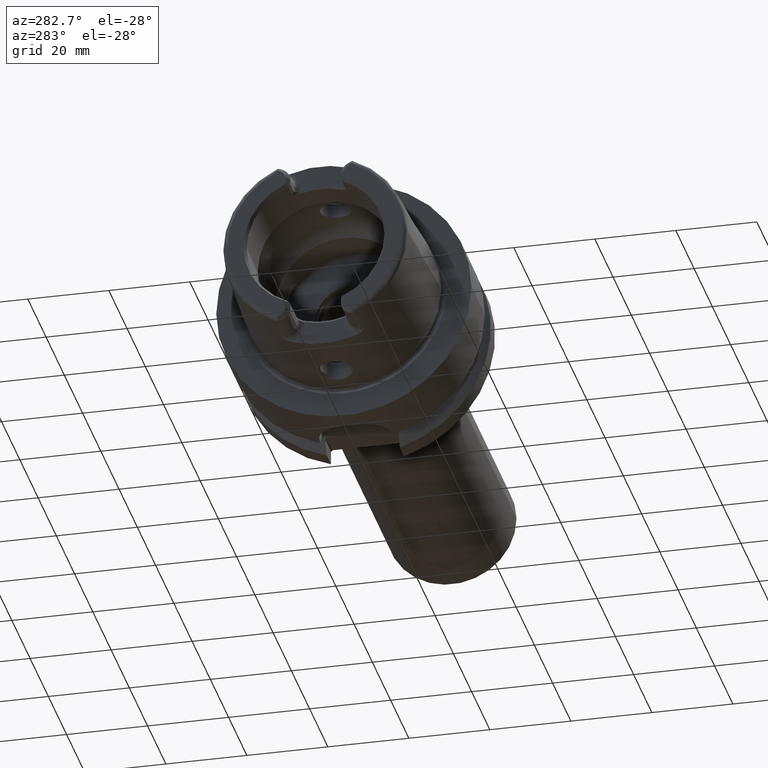
[diagram: clean part render]
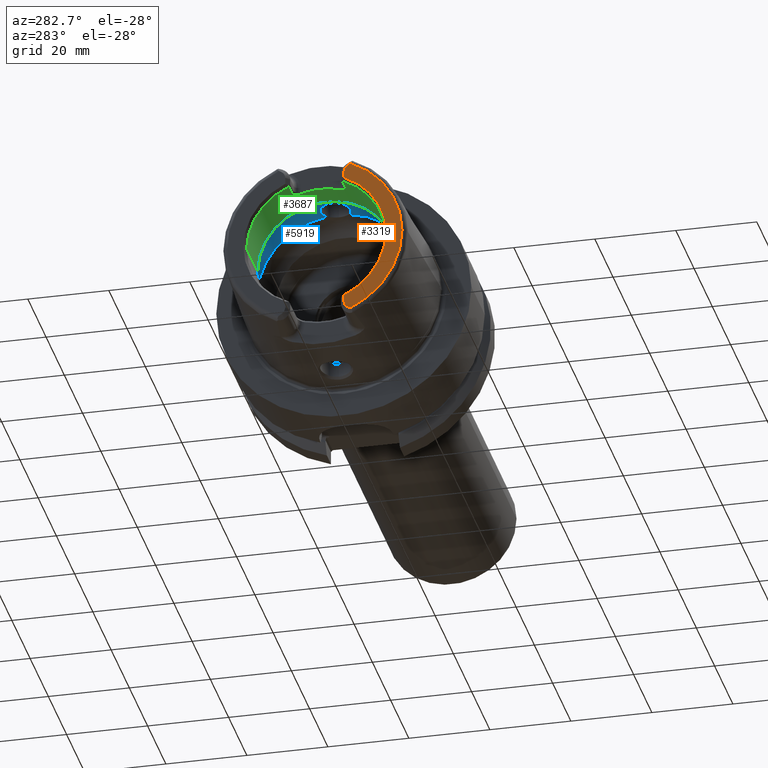
[diagram: same view with three faces highlighted in distinct colors, each labeled with its STEP entity id]
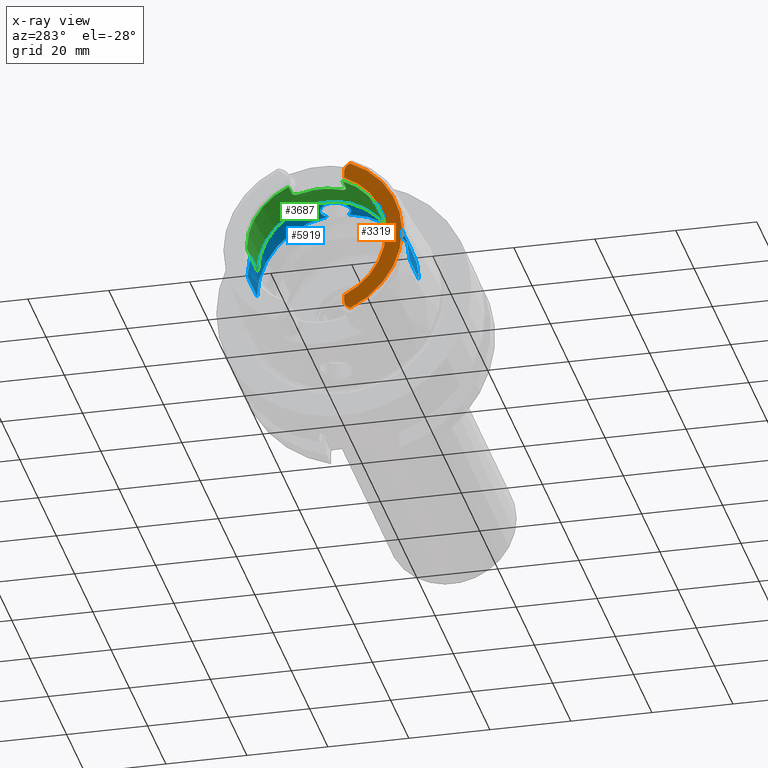
[diagram: x-ray of the same camera — body ghosted, the three highlighted faces saturated]
A machine part, auxiliary view with three faces highlighted in distinct colors.
The next image is the same camera in x-ray (body ghosted, the three faces saturated) — at least one of them is partly hidden behind the body in this view.
Their STEP definitions:

[orange] entity #3319 — the highlighted planar face has unit normal (1, 0, 0).
#231=CARTESIAN_POINT('',(-3.2E1,0.E0,0.E0));
#232=DIRECTION('',(-1.E0,0.E0,0.E0));
#233=DIRECTION('',(0.E0,-4.056746540583E-1,-9.140175463604E-1));
#234=AXIS2_PLACEMENT_3D('',#231,#232,#233);
#315=DIRECTION('',(0.E0,0.E0,-1.E0));
#316=VECTOR('',#315,1.666552168805E0);
#317=CARTESIAN_POINT('',(-3.2E1,-7.27E0,-1.600344783120E1));
#318=LINE('',#317,#316);
#319=DIRECTION('',(0.E0,0.E0,1.E0));
#320=VECTOR('',#319,1.666552168805E0);
#321=CARTESIAN_POINT('',(-3.2E1,-7.27E0,1.600344783120E1));
#322=LINE('',#321,#320);
#323=CARTESIAN_POINT('',(-3.2E1,-9.27E0,1.767E1));
#324=DIRECTION('',(1.E0,0.E0,0.E0));
#325=DIRECTION('',(0.E0,1.E0,1.065814103640E-14));
#326=AXIS2_PLACEMENT_3D('',#323,#324,#325);
#328=DIRECTION('',(0.E0,8.373245684230E-1,-5.467061067112E-1));
#329=VECTOR('',#328,6.882400885957E-1);
#330=CARTESIAN_POINT('',(-3.2E1,-8.752868121732E0,1.972091419616E1));
#331=LINE('',#330,#329);
#332=DIRECTION('',(0.E0,8.373245684230E-1,5.467061067112E-1));
#333=VECTOR('',#332,6.882400885957E-1);
#334=CARTESIAN_POINT('',(-3.2E1,-8.752868121732E0,-1.972091419616E1));
#335=LINE('',#334,#333);
#336=CARTESIAN_POINT('',(-3.2E1,-9.27E0,-1.767E1));
#337=DIRECTION('',(-1.E0,0.E0,0.E0));
#338=DIRECTION('',(0.E0,1.E0,0.E0));
#339=AXIS2_PLACEMENT_3D('',#336,#337,#338);
#410=CARTESIAN_POINT('',(-3.2E1,0.E0,0.E0));
#411=DIRECTION('',(1.E0,0.E0,0.E0));
#412=DIRECTION('',(0.E0,-4.136004510727E-1,9.104584926686E-1));
#413=AXIS2_PLACEMENT_3D('',#410,#411,#412);
#2719=CARTESIAN_POINT('',(-3.2E1,-7.27E0,1.600344783120E1));
#2720=CARTESIAN_POINT('',(-3.2E1,-7.27E0,1.767E1));
#2721=VERTEX_POINT('',#2719);
#2722=VERTEX_POINT('',#2720);
#2723=CARTESIAN_POINT('',(-3.2E1,-8.176587786578E0,1.934464913685E1));
#2724=VERTEX_POINT('',#2723);
#2725=CARTESIAN_POINT('',(-3.2E1,-8.752868121732E0,1.972091419616E1));
#2726=VERTEX_POINT('',#2725);
#2816=CARTESIAN_POINT('',(-3.2E1,-7.27E0,-1.600344783120E1));
#2817=CARTESIAN_POINT('',(-3.2E1,-7.27E0,-1.767E1));
#2818=VERTEX_POINT('',#2816);
#2819=VERTEX_POINT('',#2817);
#2820=CARTESIAN_POINT('',(-3.2E1,-8.176587786578E0,-1.934464913685E1));
#2821=VERTEX_POINT('',#2820);
#2822=CARTESIAN_POINT('',(-3.2E1,-8.752868121732E0,-1.972091419616E1));
#2823=VERTEX_POINT('',#2822);
#3297=CARTESIAN_POINT('',(-3.2E1,0.E0,0.E0));
#3298=DIRECTION('',(1.E0,0.E0,0.E0));
#3299=DIRECTION('',(0.E0,-1.E0,0.E0));
#3300=AXIS2_PLACEMENT_3D('',#3297,#3298,#3299);
#3301=PLANE('',#3300);
#3303=ORIENTED_EDGE('',*,*,#3302,.F.);
#3305=ORIENTED_EDGE('',*,*,#3304,.F.);
#3307=ORIENTED_EDGE('',*,*,#3306,.T.);
#3309=ORIENTED_EDGE('',*,*,#3308,.T.);
#3311=ORIENTED_EDGE('',*,*,#3310,.F.);
#3312=ORIENTED_EDGE('',*,*,#3244,.F.);
#3314=ORIENTED_EDGE('',*,*,#3313,.T.);
#3316=ORIENTED_EDGE('',*,*,#3315,.F.);
#3317=EDGE_LOOP('',(#3303,#3305,#3307,#3309,#3311,#3312,#3314,#3316));
#3318=FACE_OUTER_BOUND('',#3317,.F.);
#3319=ADVANCED_FACE('',(#3318),#3301,.F.);
#235=CIRCLE('',#234,2.157607835286E1);
#327=CIRCLE('',#326,2.E0);
#340=CIRCLE('',#339,2.E0);
#414=CIRCLE('',#413,1.757735026919E1);
#3244=EDGE_CURVE('',#2823,#2726,#235,.T.);
#3302=EDGE_CURVE('',#2818,#2819,#318,.T.);
#3304=EDGE_CURVE('',#2721,#2818,#414,.T.);
#3306=EDGE_CURVE('',#2721,#2722,#322,.T.);
#3308=EDGE_CURVE('',#2722,#2724,#327,.T.);
#3310=EDGE_CURVE('',#2726,#2724,#331,.T.);
#3313=EDGE_CURVE('',#2823,#2821,#335,.T.);
#3315=EDGE_CURVE('',#2819,#2821,#340,.T.);

[blue] entity #5919 — the highlighted cylindrical surface (partial cylindrical patch) has radius 20 mm, axis along (1, 0, 0).
#2238=CARTESIAN_POINT('',(-6.344997998398E0,2.648294615690E0,1.982388800484E1));
#2240=CARTESIAN_POINT('',(-6.344997998398E0,-2.648294615690E0,
1.982388800484E1));
#2255=CARTESIAN_POINT('',(-6.344997998398E0,2.648294615690E0,1.982388800484E1));
#2256=CARTESIAN_POINT('',(-6.460596585787E0,2.764185981810E0,1.980840595204E1));
#2257=CARTESIAN_POINT('',(-6.705032526468E0,2.979236620594E0,1.977762997767E1));
#2258=CARTESIAN_POINT('',(-7.115707088008E0,3.254820950558E0,1.973390915713E1));
#2259=CARTESIAN_POINT('',(-7.558788067840E0,3.473550756710E0,1.969635481023E1));
#2260=CARTESIAN_POINT('',(-8.021221245910E0,3.630990626018E0,1.966777323779E1));
#2261=CARTESIAN_POINT('',(-8.506803393416E0,3.728808889512E0,1.964936004927E1));
#2262=CARTESIAN_POINT('',(-9.030555145845E0,3.763361449459E0,1.964272649975E1));
#2263=CARTESIAN_POINT('',(-9.606429583869E0,3.716513314942E0,1.965172145674E1));
#2264=CARTESIAN_POINT('',(-1.018737071400E1,3.573599882894E0,1.967844261791E1));
#2265=CARTESIAN_POINT('',(-1.073043578591E1,3.344031986540E0,1.971908086237E1));
#2266=CARTESIAN_POINT('',(-1.122924164708E1,3.034476069484E0,1.976949853857E1));
#2267=CARTESIAN_POINT('',(-1.167539523054E1,2.649612593318E0,1.982521182701E1));
#2268=CARTESIAN_POINT('',(-1.205589435788E1,2.199789113726E0,1.988058991308E1));
#2269=CARTESIAN_POINT('',(-1.236037157112E1,1.698335126266E0,1.993006117584E1));
#2270=CARTESIAN_POINT('',(-1.258308722480E1,1.156984185320E0,1.996912477874E1));
#2271=CARTESIAN_POINT('',(-1.271933931783E1,5.855799559107E-1,
1.999421727083E1));
#2272=CARTESIAN_POINT('',(-1.275E1,1.970790591689E-1,2.E1));
#2273=CARTESIAN_POINT('',(-1.275E1,0.E0,2.E1));
#2275=CARTESIAN_POINT('',(-6.344997998398E0,0.E0,0.E0));
#2276=DIRECTION('',(1.E0,0.E0,0.E0));
#2277=DIRECTION('',(0.E0,1.E0,0.E0));
#2278=AXIS2_PLACEMENT_3D('',#2275,#2276,#2277);
#2280=CARTESIAN_POINT('',(-6.344997998398E0,0.E0,0.E0));
#2281=DIRECTION('',(1.E0,0.E0,0.E0));
#2282=DIRECTION('',(0.E0,-1.324147307845E-1,9.911944002421E-1));
#2283=AXIS2_PLACEMENT_3D('',#2280,#2281,#2282);
#2285=CARTESIAN_POINT('',(-1.275E1,0.E0,2.E1));
#2286=CARTESIAN_POINT('',(-1.275E1,-1.955242925513E-1,2.E1));
#2287=CARTESIAN_POINT('',(-1.271982051521E1,-5.810761079055E-1,
1.999430841785E1));
#2288=CARTESIAN_POINT('',(-1.258557303883E1,-1.148512219472E0,
1.996957850985E1));
#2289=CARTESIAN_POINT('',(-1.236610647030E1,-1.686465533352E0,
1.993104432949E1));
#2290=CARTESIAN_POINT('',(-1.206568486343E1,-2.185767805005E0,
1.988212273505E1));
#2291=CARTESIAN_POINT('',(-1.169008850873E1,-2.634407568635E0,
1.982723415069E1));
#2292=CARTESIAN_POINT('',(-1.124927195009E1,-3.019358385751E0,
1.977181562270E1));
#2293=CARTESIAN_POINT('',(-1.075709032709E1,-3.329824405020E0,
1.972149412598E1));
#2294=CARTESIAN_POINT('',(-1.021949126442E1,-3.562609701439E0,
1.968045031109E1));
#2295=CARTESIAN_POINT('',(-9.641467361370E0,-3.710631949485E0,
1.965284251435E1));
#2296=CARTESIAN_POINT('',(-9.064366496245E0,-3.763073985501E0,
1.964278184632E1));
#2297=CARTESIAN_POINT('',(-8.536701772833E0,-3.732854425270E0,
1.964858745769E1));
#2298=CARTESIAN_POINT('',(-8.044881233754E0,-3.637565201588E0,
1.966655458906E1));
#2299=CARTESIAN_POINT('',(-7.575563176507E0,-3.480761658208E0,
1.969508217317E1));
#2300=CARTESIAN_POINT('',(-7.126022383363E0,-3.261082066667E0,
1.973288259674E1));
#2301=CARTESIAN_POINT('',(-6.709667549471E0,-2.983130387452E0,
1.977705858332E1));
#2302=CARTESIAN_POINT('',(-6.462043566692E0,-2.765636627510E0,
1.980821215871E1));
#2303=CARTESIAN_POINT('',(-6.344997998398E0,-2.648294615690E0,
1.982388800484E1));
#2350=DIRECTION('',(-1.E0,0.E0,0.E0));
#2351=VECTOR('',#2350,1.057256643630E1);
#2352=CARTESIAN_POINT('',(-6.344997998398E0,-2.E1,0.E0));
#2353=LINE('',#2352,#2351);
#2354=DIRECTION('',(-1.E0,0.E0,0.E0));
#2355=VECTOR('',#2354,1.057256643630E1);
#2356=CARTESIAN_POINT('',(-6.344997998398E0,2.E1,0.E0));
#2357=LINE('',#2356,#2355);
#2589=CARTESIAN_POINT('',(-1.691756443470E1,0.E0,0.E0));
#2590=DIRECTION('',(1.E0,0.E0,0.E0));
#2591=DIRECTION('',(0.E0,1.E0,0.E0));
#2592=AXIS2_PLACEMENT_3D('',#2589,#2590,#2591);
#2654=CARTESIAN_POINT('',(-6.344997998398E0,2.E1,0.E0));
#2655=VERTEX_POINT('',#2654);
#2656=CARTESIAN_POINT('',(-1.691756443470E1,2.E1,0.E0));
#2657=VERTEX_POINT('',#2656);
#2666=CARTESIAN_POINT('',(-6.344997998398E0,-2.E1,0.E0));
#2667=VERTEX_POINT('',#2666);
#2668=CARTESIAN_POINT('',(-1.691756443470E1,-2.E1,0.E0));
#2669=VERTEX_POINT('',#2668);
#2836=VERTEX_POINT('',#2238);
#2837=VERTEX_POINT('',#2240);
#2838=VERTEX_POINT('',#2273);
#5902=CARTESIAN_POINT('',(-3.41E1,0.E0,0.E0));
#5903=DIRECTION('',(1.E0,0.E0,0.E0));
#5904=DIRECTION('',(0.E0,-1.E0,0.E0));
#5905=AXIS2_PLACEMENT_3D('',#5902,#5903,#5904);
#5906=CYLINDRICAL_SURFACE('',#5905,2.E1);
#5907=ORIENTED_EDGE('',*,*,#5861,.F.);
#5908=ORIENTED_EDGE('',*,*,#5897,.F.);
#5910=ORIENTED_EDGE('',*,*,#5909,.T.);
#5912=ORIENTED_EDGE('',*,*,#5911,.T.);
#5914=ORIENTED_EDGE('',*,*,#5913,.F.);
#5915=ORIENTED_EDGE('',*,*,#5889,.F.);
#5916=ORIENTED_EDGE('',*,*,#5623,.F.);
#5917=EDGE_LOOP('',(#5907,#5908,#5910,#5912,#5914,#5915,#5916));
#5918=FACE_OUTER_BOUND('',#5917,.F.);
#5919=ADVANCED_FACE('',(#5918),#5906,.F.);
#2274=B_SPLINE_CURVE_WITH_KNOTS('',3,(#2255,#2256,#2257,#2258,#2259,#2260,#2261,
#2262,#2263,#2264,#2265,#2266,#2267,#2268,#2269,#2270,#2271,#2272,#2273),
.UNSPECIFIED.,.F.,.F.,(4,1,1,1,1,1,1,1,1,1,1,1,1,1,1,1,4),(0.E0,6.25E-2,1.25E-1,
1.875E-1,2.5E-1,3.125E-1,3.75E-1,4.375E-1,5.E-1,5.625E-1,6.25E-1,6.875E-1,
7.5E-1,8.125E-1,8.75E-1,9.375E-1,1.E0),.UNSPECIFIED.);
#2279=CIRCLE('',#2278,2.E1);
#2284=CIRCLE('',#2283,2.E1);
#2304=B_SPLINE_CURVE_WITH_KNOTS('',3,(#2285,#2286,#2287,#2288,#2289,#2290,#2291,
#2292,#2293,#2294,#2295,#2296,#2297,#2298,#2299,#2300,#2301,#2302,#2303),
.UNSPECIFIED.,.F.,.F.,(4,1,1,1,1,1,1,1,1,1,1,1,1,1,1,1,4),(0.E0,6.25E-2,1.25E-1,
1.875E-1,2.5E-1,3.125E-1,3.75E-1,4.375E-1,5.E-1,5.625E-1,6.25E-1,6.875E-1,
7.5E-1,8.125E-1,8.75E-1,9.375E-1,1.E0),.UNSPECIFIED.);
#2593=CIRCLE('',#2592,2.E1);
#5623=EDGE_CURVE('',#2838,#2837,#2304,.T.);
#5861=EDGE_CURVE('',#2836,#2838,#2274,.T.);
#5889=EDGE_CURVE('',#2837,#2667,#2284,.T.);
#5897=EDGE_CURVE('',#2655,#2836,#2279,.T.);
#5909=EDGE_CURVE('',#2655,#2657,#2357,.T.);
#5911=EDGE_CURVE('',#2657,#2669,#2593,.T.);
#5913=EDGE_CURVE('',#2667,#2669,#2353,.T.);

[green] entity #3687 — the highlighted cylindrical surface (partial cylindrical patch) has radius 17 mm, axis along (1, 0, 0).
#362=CARTESIAN_POINT('',(-3.1E1,0.E0,0.E0));
#363=DIRECTION('',(1.E0,0.E0,0.E0));
#364=DIRECTION('',(0.E0,1.E0,0.E0));
#365=AXIS2_PLACEMENT_3D('',#362,#363,#364);
#394=CARTESIAN_POINT('',(-3.1E1,0.E0,0.E0));
#395=DIRECTION('',(1.E0,0.E0,0.E0));
#396=DIRECTION('',(0.E0,-3.910839598454E-1,9.203550056102E-1));
#397=AXIS2_PLACEMENT_3D('',#394,#395,#396);
#559=DIRECTION('',(1.E0,0.E0,0.E0));
#560=VECTOR('',#559,3.5E0);
#561=CARTESIAN_POINT('',(-3.1E1,6.648427317371E0,1.564603509537E1));
#562=LINE('',#561,#560);
#563=CARTESIAN_POINT('',(-2.571132486541E1,4.77E0,1.631708000838E1));
#564=CARTESIAN_POINT('',(-2.570911463045E1,4.851899929325E0,1.629313806150E1));
#565=CARTESIAN_POINT('',(-2.571539985496E1,5.014300274441E0,1.624433189365E1));
#566=CARTESIAN_POINT('',(-2.575723226820E1,5.255574737127E0,1.616786516493E1));
#567=CARTESIAN_POINT('',(-2.583019759937E1,5.488813832187E0,1.609012650164E1));
#568=CARTESIAN_POINT('',(-2.593222755914E1,5.709311810621E0,1.601314455534E1));
#569=CARTESIAN_POINT('',(-2.606208908479E1,5.913640570765E0,1.593873381343E1));
#570=CARTESIAN_POINT('',(-2.621579663552E1,6.097621457296E0,1.586916363348E1));
#571=CARTESIAN_POINT('',(-2.639004084082E1,6.257927374534E0,1.580654307494E1));
#572=CARTESIAN_POINT('',(-2.658287946713E1,6.394281114327E0,1.575179653388E1));
#573=CARTESIAN_POINT('',(-2.679414325254E1,6.504885265694E0,1.570637036291E1));
#574=CARTESIAN_POINT('',(-2.702072491693E1,6.586740689310E0,1.567215753589E1));
#575=CARTESIAN_POINT('',(-2.725841410654E1,6.637201205541E0,1.565081274977E1));
#576=CARTESIAN_POINT('',(-2.741884128981E1,6.648427317371E0,1.564603509537E1));
#577=CARTESIAN_POINT('',(-2.75E1,6.648427317371E0,1.564603509537E1));
#579=CARTESIAN_POINT('',(-2.571132486541E1,-4.77E0,1.631708000838E1));
#580=CARTESIAN_POINT('',(-2.571132486541E1,-4.151241293882E0,1.649796280277E1));
#581=CARTESIAN_POINT('',(-2.571132889067E1,-2.893125957956E0,1.678926713017E1));
#582=CARTESIAN_POINT('',(-2.571132738120E1,-9.685489423330E-1,
1.700915920873E1));
#583=CARTESIAN_POINT('',(-2.571132738120E1,9.685489423332E-1,1.700915920873E1));
#584=CARTESIAN_POINT('',(-2.571132889067E1,2.893125957955E0,1.678926713017E1));
#585=CARTESIAN_POINT('',(-2.571132486541E1,4.151241293884E0,1.649796280277E1));
#586=CARTESIAN_POINT('',(-2.571132486541E1,4.77E0,1.631708000838E1));
#588=CARTESIAN_POINT('',(-2.75E1,-6.648427317371E0,1.564603509537E1));
#589=CARTESIAN_POINT('',(-2.741886739757E1,-6.648427317371E0,1.564603509537E1));
#590=CARTESIAN_POINT('',(-2.725846026145E1,-6.637216591931E0,1.565080624648E1));
#591=CARTESIAN_POINT('',(-2.702047669465E1,-6.586680175792E0,1.567218311946E1));
#592=CARTESIAN_POINT('',(-2.679396033382E1,-6.504789416100E0,1.570640995358E1));
#593=CARTESIAN_POINT('',(-2.658322850975E1,-6.394447887183E0,1.575172726773E1));
#594=CARTESIAN_POINT('',(-2.639118887217E1,-6.258799446744E0,1.580619508840E1));
#595=CARTESIAN_POINT('',(-2.621738949273E1,-6.099242016698E0,1.586853752436E1));
#596=CARTESIAN_POINT('',(-2.606384631874E1,-5.916012648986E0,1.593785105703E1));
#597=CARTESIAN_POINT('',(-2.593366664869E1,-5.711955003317E0,1.601220141386E1));
#598=CARTESIAN_POINT('',(-2.583107108488E1,-5.491206341112E0,1.608931480424E1));
#599=CARTESIAN_POINT('',(-2.575746962839E1,-5.256749499660E0,1.616748882623E1));
#600=CARTESIAN_POINT('',(-2.571543732099E1,-5.014873021211E0,1.624415783103E1));
#601=CARTESIAN_POINT('',(-2.570911008721E1,-4.852068278437E0,1.629308884771E1));
#602=CARTESIAN_POINT('',(-2.571132486541E1,-4.77E0,1.631708000838E1));
#604=DIRECTION('',(1.E0,0.E0,0.E0));
#605=VECTOR('',#604,3.5E0);
#606=CARTESIAN_POINT('',(-3.1E1,-6.648427317371E0,1.564603509537E1));
#607=LINE('',#606,#605);
#608=CARTESIAN_POINT('',(-1.899602540378E1,0.E0,0.E0));
#609=DIRECTION('',(1.E0,0.E0,0.E0));
#610=DIRECTION('',(0.E0,1.E0,0.E0));
#611=AXIS2_PLACEMENT_3D('',#608,#609,#610);
#666=DIRECTION('',(-1.E0,0.E0,0.E0));
#667=VECTOR('',#666,1.200397459622E1);
#668=CARTESIAN_POINT('',(-1.899602540378E1,1.7E1,0.E0));
#669=LINE('',#668,#667);
#675=DIRECTION('',(-1.E0,0.E0,0.E0));
#676=VECTOR('',#675,1.200397459622E1);
#677=CARTESIAN_POINT('',(-1.899602540378E1,-1.7E1,0.E0));
#678=LINE('',#677,#676);
#2660=CARTESIAN_POINT('',(-1.899602540378E1,1.7E1,0.E0));
#2661=VERTEX_POINT('',#2660);
#2662=CARTESIAN_POINT('',(-3.1E1,1.7E1,0.E0));
#2663=VERTEX_POINT('',#2662);
#2672=CARTESIAN_POINT('',(-1.899602540378E1,-1.7E1,0.E0));
#2673=VERTEX_POINT('',#2672);
#2674=CARTESIAN_POINT('',(-3.1E1,-1.7E1,0.E0));
#2675=VERTEX_POINT('',#2674);
#2741=CARTESIAN_POINT('',(-2.75E1,6.648427317371E0,1.564603509537E1));
#2742=VERTEX_POINT('',#2741);
#2743=CARTESIAN_POINT('',(-2.571132486541E1,4.77E0,1.631708000838E1));
#2744=VERTEX_POINT('',#2743);
#2745=CARTESIAN_POINT('',(-2.75E1,-6.648427317371E0,1.564603509537E1));
#2746=VERTEX_POINT('',#2745);
#2747=CARTESIAN_POINT('',(-2.571132486541E1,-4.77E0,1.631708000838E1));
#2748=VERTEX_POINT('',#2747);
#2753=CARTESIAN_POINT('',(-3.1E1,6.648427317371E0,1.564603509537E1));
#2754=VERTEX_POINT('',#2753);
#2755=CARTESIAN_POINT('',(-3.1E1,-6.648427317371E0,1.564603509537E1));
#2756=VERTEX_POINT('',#2755);
#3666=CARTESIAN_POINT('',(-3.41E1,0.E0,0.E0));
#3667=DIRECTION('',(1.E0,0.E0,0.E0));
#3668=DIRECTION('',(0.E0,-1.E0,0.E0));
#3669=AXIS2_PLACEMENT_3D('',#3666,#3667,#3668);
#3670=CYLINDRICAL_SURFACE('',#3669,1.7E1);
#3671=ORIENTED_EDGE('',*,*,#3403,.T.);
#3673=ORIENTED_EDGE('',*,*,#3672,.F.);
#3674=ORIENTED_EDGE('',*,*,#3551,.F.);
#3675=ORIENTED_EDGE('',*,*,#3606,.F.);
#3676=ORIENTED_EDGE('',*,*,#3621,.F.);
#3677=ORIENTED_EDGE('',*,*,#3368,.T.);
#3679=ORIENTED_EDGE('',*,*,#3678,.F.);
#3681=ORIENTED_EDGE('',*,*,#3680,.F.);
#3683=ORIENTED_EDGE('',*,*,#3682,.T.);
#3684=ORIENTED_EDGE('',*,*,#3348,.T.);
#3685=EDGE_LOOP('',(#3671,#3673,#3674,#3675,#3676,#3677,#3679,#3681,#3683,
#3684));
#3686=FACE_OUTER_BOUND('',#3685,.F.);
#3687=ADVANCED_FACE('',(#3686),#3670,.F.);
#366=CIRCLE('',#365,1.7E1);
#398=CIRCLE('',#397,1.7E1);
#578=B_SPLINE_CURVE_WITH_KNOTS('',3,(#563,#564,#565,#566,#567,#568,#569,#570,
#571,#572,#573,#574,#575,#576,#577),.UNSPECIFIED.,.F.,.F.,(4,1,1,1,1,1,1,1,1,1,
1,1,4),(0.E0,8.333333333333E-2,1.666666666667E-1,2.5E-1,3.333333333333E-1,
4.166666666667E-1,5.E-1,5.833333333333E-1,6.666666666667E-1,7.5E-1,
8.333333333333E-1,9.166666666667E-1,1.E0),.UNSPECIFIED.);
#587=B_SPLINE_CURVE_WITH_KNOTS('',3,(#579,#580,#581,#582,#583,#584,#585,#586),
.UNSPECIFIED.,.F.,.F.,(4,1,1,1,1,4),(0.E0,2.E-1,4.E-1,6.E-1,8.E-1,1.E0),
.UNSPECIFIED.);
#603=B_SPLINE_CURVE_WITH_KNOTS('',3,(#588,#589,#590,#591,#592,#593,#594,#595,
#596,#597,#598,#599,#600,#601,#602),.UNSPECIFIED.,.F.,.F.,(4,1,1,1,1,1,1,1,1,1,
1,1,4),(0.E0,8.333333333333E-2,1.666666666667E-1,2.5E-1,3.333333333333E-1,
4.166666666667E-1,5.E-1,5.833333333333E-1,6.666666666667E-1,7.5E-1,
8.333333333333E-1,9.166666666667E-1,1.E0),.UNSPECIFIED.);
#612=CIRCLE('',#611,1.7E1);
#3348=EDGE_CURVE('',#2663,#2754,#366,.T.);
#3368=EDGE_CURVE('',#2756,#2675,#398,.T.);
#3403=EDGE_CURVE('',#2754,#2742,#562,.T.);
#3551=EDGE_CURVE('',#2748,#2744,#587,.T.);
#3606=EDGE_CURVE('',#2746,#2748,#603,.T.);
#3621=EDGE_CURVE('',#2756,#2746,#607,.T.);
#3672=EDGE_CURVE('',#2744,#2742,#578,.T.);
#3678=EDGE_CURVE('',#2673,#2675,#678,.T.);
#3680=EDGE_CURVE('',#2661,#2673,#612,.T.);
#3682=EDGE_CURVE('',#2661,#2663,#669,.T.);